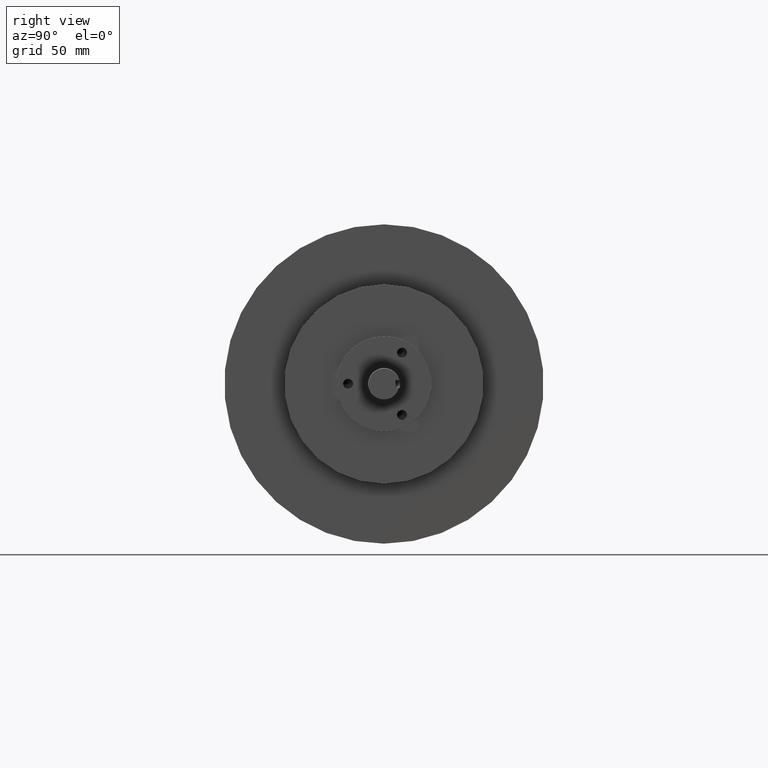
[diagram: clean part render]
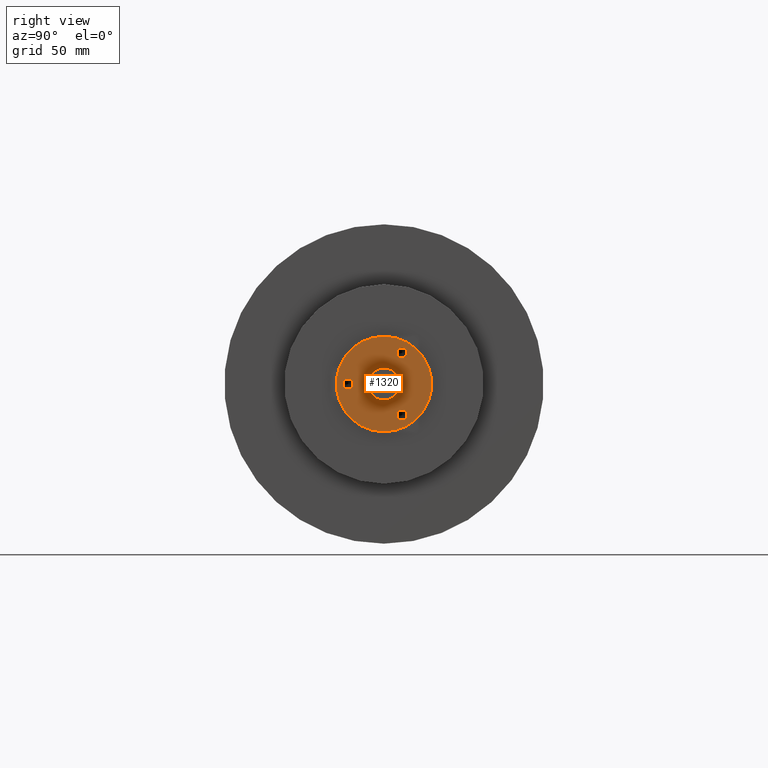
[diagram: same view with one face highlighted and labeled with its STEP entity id]
A machine part, right view. The second image highlights one B-rep face of the part: STEP entity #1320.
In plain terms, the highlighted planar face has unit normal (1, 0, 0).
Its self-contained STEP definition (entity closure, byte-faithful):
#9 = DIRECTION ( 'NONE',  ( 0.0000000000000000000, 0.0000000000000000000, -1.000000000000000000 ) ) ;
#10 = DIRECTION ( 'NONE',  ( 1.000000000000000000, -0.0000000000000000000, -0.0000000000000000000 ) ) ;
#29 = CARTESIAN_POINT ( 'NONE',  ( 16.05000000000000400, -1.125000000000000000, 0.0000000000000000000 ) ) ;
#45 = DIRECTION ( 'NONE',  ( 0.0000000000000000000, 0.0000000000000000000, -1.000000000000000000 ) ) ;
#46 = DIRECTION ( 'NONE',  ( 1.000000000000000000, -0.0000000000000000000, -0.0000000000000000000 ) ) ;
#47 = CARTESIAN_POINT ( 'NONE',  ( 16.05000000000000400, 0.5625000000000046600, 0.9742785792574910600 ) ) ;
#72 = DIRECTION ( 'NONE',  ( 0.0000000000000000000, 0.0000000000000000000, -1.000000000000000000 ) ) ;
#73 = DIRECTION ( 'NONE',  ( 1.000000000000000000, -0.0000000000000000000, -0.0000000000000000000 ) ) ;
#95 = CARTESIAN_POINT ( 'NONE',  ( 16.05000000000000400, 0.5624999999999909000, -0.9742785792574986100 ) ) ;
#103 = CIRCLE ( 'NONE', #2581, 1.495000000000000100 ) ;
#173 = FACE_OUTER_BOUND ( 'NONE', #546, .T. ) ;
#175 = FACE_BOUND ( 'NONE', #555, .T. ) ;
#180 = FACE_BOUND ( 'NONE', #551, .T. ) ;
#182 = FACE_BOUND ( 'NONE', #553, .T. ) ;
#184 = FACE_BOUND ( 'NONE', #554, .T. ) ;
#546 = EDGE_LOOP ( 'NONE', ( #1439, #1440 ) ) ;
#551 = EDGE_LOOP ( 'NONE', ( #1441, #1442 ) ) ;
#553 = EDGE_LOOP ( 'NONE', ( #1443, #1444 ) ) ;
#554 = EDGE_LOOP ( 'NONE', ( #1445, #1446 ) ) ;
#555 = EDGE_LOOP ( 'NONE', ( #1447, #1448 ) ) ;
#647 = VERTEX_POINT ( 'NONE', #765 ) ;
#648 = VERTEX_POINT ( 'NONE', #766 ) ;
#679 = VERTEX_POINT ( 'NONE', #797 ) ;
#680 = VERTEX_POINT ( 'NONE', #798 ) ;
#684 = VERTEX_POINT ( 'NONE', #802 ) ;
#685 = VERTEX_POINT ( 'NONE', #803 ) ;
#689 = VERTEX_POINT ( 'NONE', #807 ) ;
#690 = VERTEX_POINT ( 'NONE', #808 ) ;
#724 = VERTEX_POINT ( 'NONE', #842 ) ;
#725 = VERTEX_POINT ( 'NONE', #843 ) ;
#765 = CARTESIAN_POINT ( 'NONE',  ( 16.05000000000000400, 1.833908581723161700E-016, 1.495000000000000100 ) ) ;
#766 = CARTESIAN_POINT ( 'NONE',  ( 16.05000000000000400, 0.0000000000000000000, -1.495000000000000100 ) ) ;
#797 = CARTESIAN_POINT ( 'NONE',  ( 16.05000000000000400, 0.5624999999999909000, -0.8180285792574988300 ) ) ;
#798 = CARTESIAN_POINT ( 'NONE',  ( 16.05000000000000400, 0.5624999999999909000, -1.130528579257498600 ) ) ;
#802 = CARTESIAN_POINT ( 'NONE',  ( 16.05000000000000400, 0.5625000000000046600, 1.130528579257490800 ) ) ;
#803 = CARTESIAN_POINT ( 'NONE',  ( 16.05000000000000400, 0.5625000000000046600, 0.8180285792574911700 ) ) ;
#807 = CARTESIAN_POINT ( 'NONE',  ( 16.05000000000000400, -1.125000000000000000, 0.1562499999999998600 ) ) ;
#808 = CARTESIAN_POINT ( 'NONE',  ( 16.05000000000000400, -1.125000000000000000, -0.1562499999999998600 ) ) ;
#842 = CARTESIAN_POINT ( 'NONE',  ( 16.05000000000000400, 6.123233995736766000E-017, -0.5000000000000000000 ) ) ;
#843 = CARTESIAN_POINT ( 'NONE',  ( 16.05000000000000400, 0.0000000000000000000, 0.5000000000000000000 ) ) ;
#1036 = EDGE_CURVE ( 'NONE', #679, #680, #1732, .T. ) ;
#1045 = EDGE_CURVE ( 'NONE', #684, #685, #1742, .T. ) ;
#1052 = EDGE_CURVE ( 'NONE', #689, #690, #1753, .T. ) ;
#1117 = EDGE_CURVE ( 'NONE', #724, #725, #1856, .T. ) ;
#1137 = EDGE_CURVE ( 'NONE', #647, #648, #1884, .T. ) ;
#1139 = EDGE_CURVE ( 'NONE', #685, #684, #1886, .T. ) ;
#1140 = EDGE_CURVE ( 'NONE', #725, #724, #1888, .T. ) ;
#1144 = EDGE_CURVE ( 'NONE', #690, #689, #1893, .T. ) ;
#1145 = EDGE_CURVE ( 'NONE', #680, #679, #1894, .T. ) ;
#1182 = EDGE_CURVE ( 'NONE', #648, #647, #103, .T. ) ;
#1246 = AXIS2_PLACEMENT_3D ( 'NONE', #95, #73, #72 ) ;
#1254 = AXIS2_PLACEMENT_3D ( 'NONE', #47, #46, #45 ) ;
#1256 = AXIS2_PLACEMENT_3D ( 'NONE', #29, #10, #9 ) ;
#1285 = AXIS2_PLACEMENT_3D ( 'NONE', #2066, #2075, #2076 ) ;
#1320 = ADVANCED_FACE ( 'NONE', ( #173, #180, #182, #184, #175 ), #2409, .T. ) ;
#1439 = ORIENTED_EDGE ( 'NONE', *, *, #1182, .T. ) ;
#1440 = ORIENTED_EDGE ( 'NONE', *, *, #1137, .T. ) ;
#1441 = ORIENTED_EDGE ( 'NONE', *, *, #1145, .F. ) ;
#1442 = ORIENTED_EDGE ( 'NONE', *, *, #1036, .F. ) ;
#1443 = ORIENTED_EDGE ( 'NONE', *, *, #1139, .F. ) ;
#1444 = ORIENTED_EDGE ( 'NONE', *, *, #1045, .F. ) ;
#1445 = ORIENTED_EDGE ( 'NONE', *, *, #1144, .F. ) ;
#1446 = ORIENTED_EDGE ( 'NONE', *, *, #1052, .F. ) ;
#1447 = ORIENTED_EDGE ( 'NONE', *, *, #1140, .F. ) ;
#1448 = ORIENTED_EDGE ( 'NONE', *, *, #1117, .F. ) ;
#1732 = CIRCLE ( 'NONE', #1246, 0.1562499999999998600 ) ;
#1742 = CIRCLE ( 'NONE', #1254, 0.1562499999999998600 ) ;
#1753 = CIRCLE ( 'NONE', #1256, 0.1562499999999998600 ) ;
#1856 = CIRCLE ( 'NONE', #1285, 0.5000000000000000000 ) ;
#1884 = CIRCLE ( 'NONE', #2547, 1.495000000000000100 ) ;
#1886 = CIRCLE ( 'NONE', #2549, 0.1562499999999998600 ) ;
#1888 = CIRCLE ( 'NONE', #2548, 0.5000000000000000000 ) ;
#1893 = CIRCLE ( 'NONE', #2552, 0.1562499999999998600 ) ;
#1894 = CIRCLE ( 'NONE', #2553, 0.1562499999999998600 ) ;
#2066 = CARTESIAN_POINT ( 'NONE',  ( 16.05000000000000400, 0.0000000000000000000, 0.0000000000000000000 ) ) ;
#2075 = DIRECTION ( 'NONE',  ( 1.000000000000000000, 0.0000000000000000000, 0.0000000000000000000 ) ) ;
#2076 = DIRECTION ( 'NONE',  ( 0.0000000000000000000, 0.0000000000000000000, -1.000000000000000000 ) ) ;
#2150 = CARTESIAN_POINT ( 'NONE',  ( 16.05000000000000400, 0.0000000000000000000, 0.0000000000000000000 ) ) ;
#2151 = DIRECTION ( 'NONE',  ( 1.000000000000000000, 0.0000000000000000000, 0.0000000000000000000 ) ) ;
#2152 = DIRECTION ( 'NONE',  ( 0.0000000000000000000, 0.0000000000000000000, -1.000000000000000000 ) ) ;
#2153 = CARTESIAN_POINT ( 'NONE',  ( 16.05000000000000400, 0.0000000000000000000, 0.0000000000000000000 ) ) ;
#2155 = CARTESIAN_POINT ( 'NONE',  ( 16.05000000000000400, 0.5625000000000046600, 0.9742785792574910600 ) ) ;
#2157 = DIRECTION ( 'NONE',  ( 1.000000000000000000, -0.0000000000000000000, -0.0000000000000000000 ) ) ;
#2158 = DIRECTION ( 'NONE',  ( 0.0000000000000000000, 0.0000000000000000000, -1.000000000000000000 ) ) ;
#2159 = CARTESIAN_POINT ( 'NONE',  ( 16.05000000000000400, -1.125000000000000000, 0.0000000000000000000 ) ) ;
#2160 = DIRECTION ( 'NONE',  ( 1.000000000000000000, 0.0000000000000000000, 0.0000000000000000000 ) ) ;
#2161 = DIRECTION ( 'NONE',  ( 0.0000000000000000000, 0.0000000000000000000, -1.000000000000000000 ) ) ;
#2162 = CARTESIAN_POINT ( 'NONE',  ( 16.05000000000000400, 0.5624999999999909000, -0.9742785792574986100 ) ) ;
#2170 = DIRECTION ( 'NONE',  ( 1.000000000000000000, -0.0000000000000000000, -0.0000000000000000000 ) ) ;
#2171 = DIRECTION ( 'NONE',  ( 0.0000000000000000000, 0.0000000000000000000, -1.000000000000000000 ) ) ;
#2172 = DIRECTION ( 'NONE',  ( 1.000000000000000000, -0.0000000000000000000, -0.0000000000000000000 ) ) ;
#2173 = DIRECTION ( 'NONE',  ( 0.0000000000000000000, 0.0000000000000000000, -1.000000000000000000 ) ) ;
#2277 = CARTESIAN_POINT ( 'NONE',  ( 16.05000000000000400, 0.0000000000000000000, 0.0000000000000000000 ) ) ;
#2278 = DIRECTION ( 'NONE',  ( 1.000000000000000000, 0.0000000000000000000, 0.0000000000000000000 ) ) ;
#2279 = DIRECTION ( 'NONE',  ( 0.0000000000000000000, 0.0000000000000000000, -1.000000000000000000 ) ) ;
#2409 = PLANE ( 'NONE',  #2629 ) ;
#2413 = CARTESIAN_POINT ( 'NONE',  ( 16.05000000000000400, 0.0000000000000000000, 0.0000000000000000000 ) ) ;
#2415 = DIRECTION ( 'NONE',  ( 1.000000000000000000, 0.0000000000000000000, 0.0000000000000000000 ) ) ;
#2416 = DIRECTION ( 'NONE',  ( 0.0000000000000000000, 0.0000000000000000000, -1.000000000000000000 ) ) ;
#2547 = AXIS2_PLACEMENT_3D ( 'NONE', #2150, #2151, #2152 ) ;
#2548 = AXIS2_PLACEMENT_3D ( 'NONE', #2153, #2160, #2161 ) ;
#2549 = AXIS2_PLACEMENT_3D ( 'NONE', #2155, #2157, #2158 ) ;
#2552 = AXIS2_PLACEMENT_3D ( 'NONE', #2159, #2170, #2171 ) ;
#2553 = AXIS2_PLACEMENT_3D ( 'NONE', #2162, #2172, #2173 ) ;
#2581 = AXIS2_PLACEMENT_3D ( 'NONE', #2277, #2278, #2279 ) ;
#2629 = AXIS2_PLACEMENT_3D ( 'NONE', #2413, #2415, #2416 ) ;